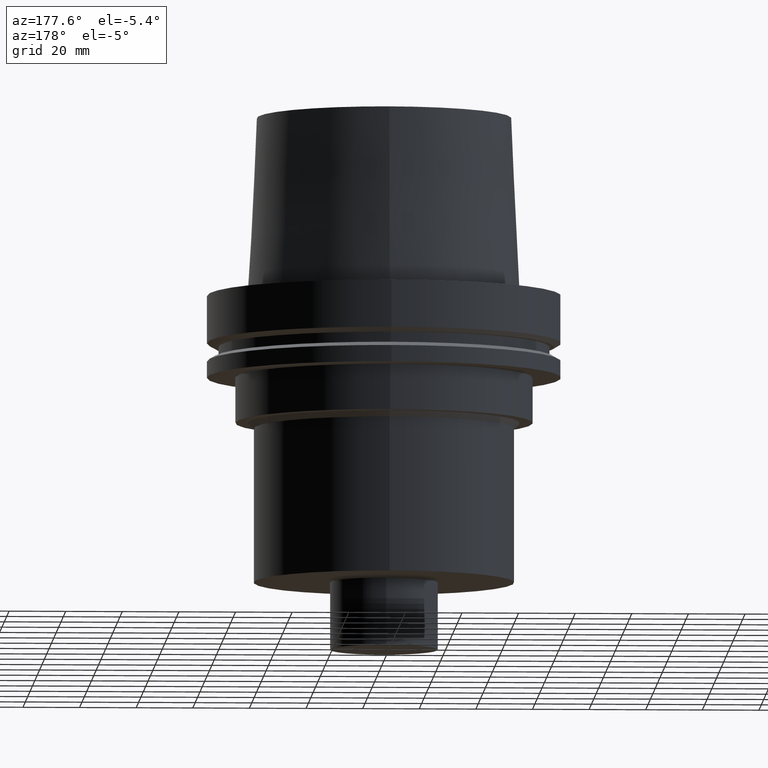
[diagram: clean part render]
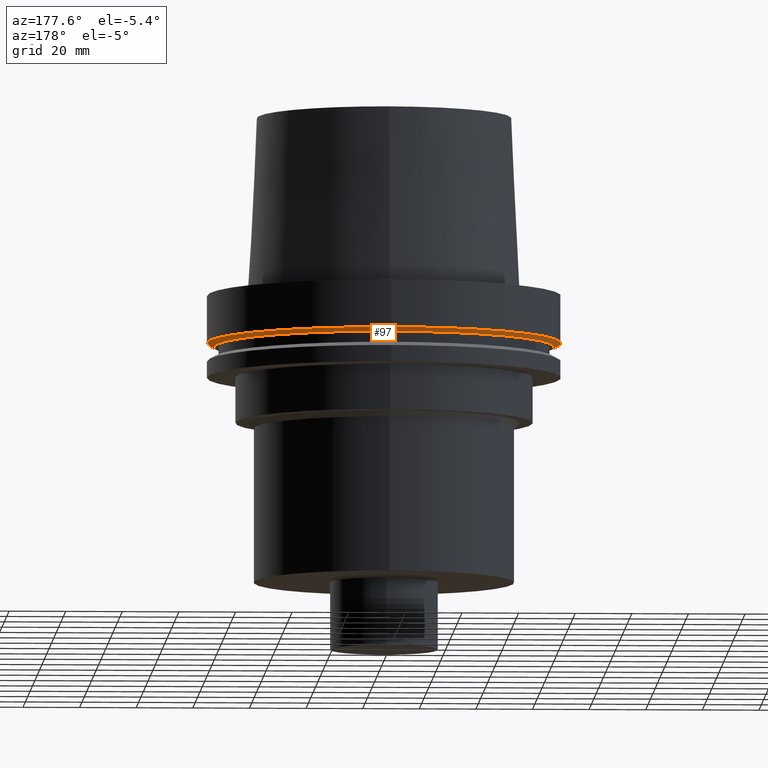
[diagram: same view with one face highlighted and labeled with its STEP entity id]
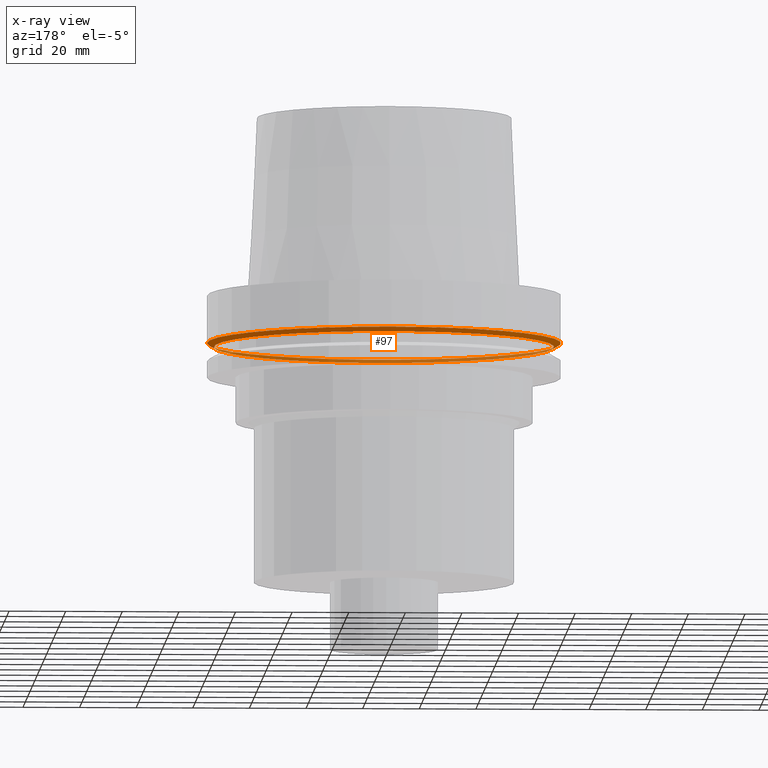
[diagram: x-ray of the same camera — body ghosted, the highlighted face saturated]
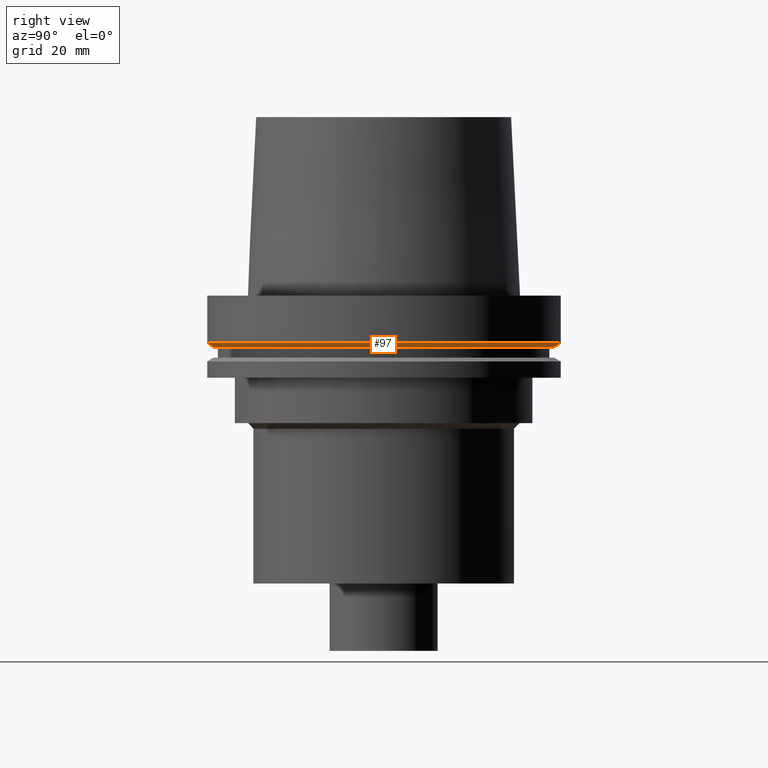
[diagram: same view with one face highlighted and labeled with its STEP entity id]
A machine part, auxiliary view. The second image highlights one B-rep face of the part: STEP entity #97.
The next image is the same camera in x-ray: the body ghosted, the highlighted face saturated — about 37% of this face is hidden behind the body in this view.
A second angle (right view) of the same face is appended — the face is thin or edge-on in the first view.
In plain terms, the highlighted conical surface has half-angle 60 deg.
Its self-contained STEP definition (entity closure, byte-faithful):
#97=ADVANCED_FACE('Unnamed[1]',(#224,#225),#226,.T.);
#124=EDGE_CURVE('Unnamed[1]',#267,#267,#268,.T.);
#140=EDGE_CURVE('Unnamed[1]',#292,#292,#293,.T.);
#224=FACE_BOUND('',#385,.T.);
#225=FACE_BOUND('',#386,.T.);
#226=CONICAL_SURFACE('',#387,61.3112976320956,1.04719755119668);
#267=VERTEX_POINT('',#439);
#268=CIRCLE('',#440,60.1225952641912);
#292=VERTEX_POINT('',#471);
#293=CIRCLE('',#472,62.5);
#385=EDGE_LOOP('',(#556));
#386=EDGE_LOOP('',(#557));
#387=AXIS2_PLACEMENT_3D('',#558,#559,#560);
#439=CARTESIAN_POINT('',(1.10983616172729E-015,60.1225952641912,-18.1250000000001));
#440=AXIS2_PLACEMENT_3D('',#605,#606,#607);
#471=CARTESIAN_POINT('',(1.02578894188644E-015,62.5,-16.7524047358084));
#472=AXIS2_PLACEMENT_3D('',#632,#633,#634);
#556=ORIENTED_EDGE('',*,*,#124,.F.);
#557=ORIENTED_EDGE('',*,*,#140,.T.);
#558=CARTESIAN_POINT('',(1.06781255180686E-015,2.13562510361373E-015,-17.4387023679042));
#559=DIRECTION('',(-6.12323399573676E-017,-1.22464679914786E-016,1.0));
#560=DIRECTION('',(-1.23259516440761E-032,1.0,1.22464679914786E-016));
#605=CARTESIAN_POINT('',(1.10983616172729E-015,2.21967232345459E-015,-18.1250000000001));
#606=DIRECTION('',(6.12323399573677E-017,1.22464679914743E-016,-1.0));
#607=DIRECTION('',(-1.23259516440797E-032,1.0,1.22464679914743E-016));
#632=CARTESIAN_POINT('',(1.02578894188644E-015,2.05157788377287E-015,-16.7524047358084));
#633=DIRECTION('',(6.12323399573676E-017,1.22464679914723E-016,-1.0));
#634=DIRECTION('',(-1.23259516440783E-032,1.0,1.22464679914723E-016));